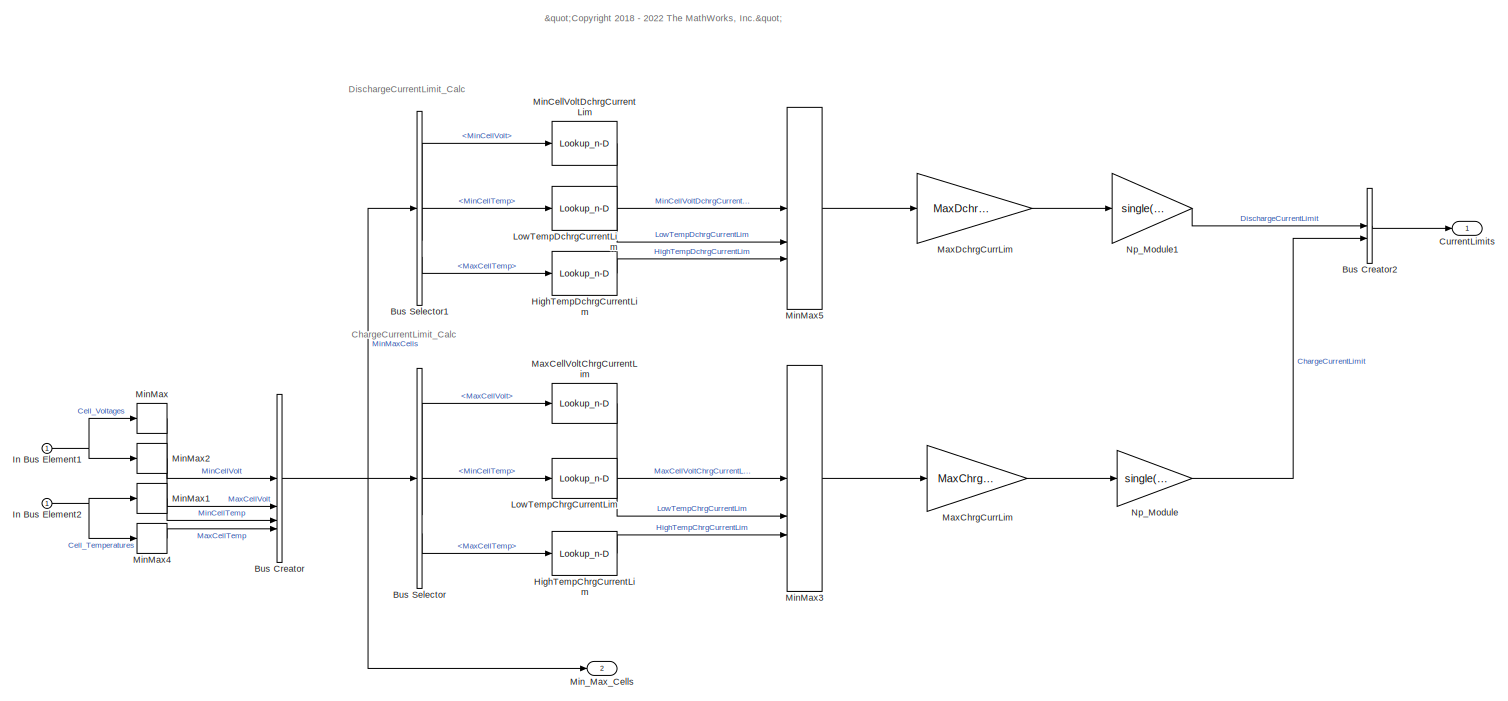
[diagram: root canvas - part 1/2, most of the canvas]
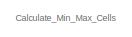
[diagram: root canvas - part 2/2, middle left region]
MODEL slx_5abffa103552
KIND model
BLOCK [BusCreator] Bus Creator
  DisplayOption = bar
  InheritFromInputs = off
  Inputs = 4
  NonVirtualBus = on
  OutDataTypeStr = Bus: Min_Max_Cells
BLOCK [BusCreator] Bus Creator2
  DisplayOption = bar
  InheritFromInputs = on
  Inputs = 2
  NonVirtualBus = on
  OutDataTypeStr = Bus: CurrentLimits
BLOCK [BusSelector] Bus Selector
  OutputSignals = MaxCellVolt,MinCellTemp,MaxCellTemp
BLOCK [BusSelector] Bus Selector1
  OutputSignals = MinCellVolt,MinCellTemp,MaxCellTemp
BLOCK [Outport] CurrentLimits
  OutDataTypeStr = Bus: CurrentLimits
BLOCK [Lookup_n-D] HighTempChrgCurrentLim
  BreakpointsForDimension1 = single([40  45  50    55 65])
  ExtrapMethod = Clip
  InputPortMap = u0
  InternalRulePriority = Speed
  NumberOfTableDimensions = 1
  RndMeth = Simplest
  Table = single([1.0 1.0 0.75 0.5 0])
BLOCK [Lookup_n-D] HighTempDchrgCurrentLim
  BreakpointsForDimension1 = single([40, 45, 50, 60])
  ExtrapMethod = Clip
  InputPortMap = u0
  InternalRulePriority = Speed
  NumberOfTableDimensions = 1
  RndMeth = Simplest
  Table = single([1, 0.5, 0.3, 0])
BLOCK [Inport] In Bus Element1
BLOCK [Inport] In Bus Element2
BLOCK [Lookup_n-D] LowTempChrgCurrentLim
  BreakpointsForDimension1 = single([-15 -10 -5.0 0.0 5.0 10 15.0])
  ExtrapMethod = Clip
  InputPortMap = u0
  InternalRulePriority = Speed
  NumberOfTableDimensions = 1
  RndMeth = Simplest
  Table = single([0.1 0.2  0.3 0.3 0.5 1.0 1.0])
BLOCK [Lookup_n-D] LowTempDchrgCurrentLim
  BreakpointsForDimension1 = single([-10, -5,    0,   5, 10, 15, 20])
  ExtrapMethod = Clip
  InputPortMap = u0
  InternalRulePriority = Speed
  NumberOfTableDimensions = 1
  RndMeth = Simplest
  Table = single([0,  0.2, 0.3, 0.5, 0.75, 1, 1])
BLOCK [Lookup_n-D] MaxCellVoltChrgCurrentLim
  BreakpointsForDimension1 = single([4.0 4.10 4.15 4.2])
  ExtrapMethod = Clip
  InputPortMap = u0
  InternalRulePriority = Speed
  NumberOfTableDimensions = 1
  RndMeth = Simplest
  Table = single([1.0 0.75 0.50 0.2])
BLOCK [Gain] MaxChrgCurrLim
  Gain = MaxChrgCurrLimit
BLOCK [Gain] MaxDchrgCurrLim
  Gain = MaxDchrgCurrLimit
BLOCK [Lookup_n-D] MinCellVoltDchrgCurrentLim
  BreakpointsForDimension1 = MinCellVoltDchrgCurrentLim_BP
  DataSpecification = Lookup table object
  ExtrapMethod = Clip
  InputPortMap = u0
  InternalRulePriority = Speed
  LookupTableObject = MinCellVoltDchrgCurrentLimTable
  NumberOfTableDimensions = 1
  RndMeth = Simplest
  Table = MinCellVoltDchrgCurrentLim_Table
BLOCK [MinMax] MinMax
BLOCK [MinMax] MinMax1
BLOCK [MinMax] MinMax2
  Function = max
BLOCK [MinMax] MinMax3
  Inputs = 3
BLOCK [MinMax] MinMax4
  Function = max
BLOCK [MinMax] MinMax5
  Inputs = 3
BLOCK [Outport] Min_Max_Cells
  OutDataTypeStr = Bus: Min_Max_Cells
  Port = 2
BLOCK [Gain] Np_Module
  Gain = single(Np_Module)
  ParamDataTypeStr = Inherit: Inherit from 'Gain'
BLOCK [Gain] Np_Module1
  Gain = single(Np_Module)
  ParamDataTypeStr = Inherit: Inherit from 'Gain'
ANNOTATION (root): "<copyright redacted>
ANNOTATION (root): Calculate_Min_Max_Cells
ANNOTATION (root): ChargeCurrentLimit_Calc
ANNOTATION (root): DischargeCurrentLimit_Calc
LINE Bus Creator2:1 -> CurrentLimits:1
NET Bus Creator:1 -> Bus Selector1:1, Bus Selector:1, Min_Max_Cells:1
LINE Bus Selector1:1 -> MinCellVoltDchrgCurrentLim:1
LINE Bus Selector1:2 -> LowTempDchrgCurrentLim:1
LINE Bus Selector1:3 -> HighTempDchrgCurrentLim:1
LINE Bus Selector:1 -> MaxCellVoltChrgCurrentLim:1
LINE Bus Selector:2 -> LowTempChrgCurrentLim:1
LINE Bus Selector:3 -> HighTempChrgCurrentLim:1
LINE HighTempChrgCurrentLim:1 -> MinMax3:3
LINE HighTempDchrgCurrentLim:1 -> MinMax5:3
NET In Bus Element1:1 -> MinMax2:1, MinMax:1
NET In Bus Element2:1 -> MinMax1:1, MinMax4:1
LINE LowTempChrgCurrentLim:1 -> MinMax3:2
LINE LowTempDchrgCurrentLim:1 -> MinMax5:2
LINE MaxCellVoltChrgCurrentLim:1 -> MinMax3:1
LINE MaxChrgCurrLim:1 -> Np_Module:1
LINE MaxDchrgCurrLim:1 -> Np_Module1:1
LINE MinCellVoltDchrgCurrentLim:1 -> MinMax5:1
LINE MinMax1:1 -> Bus Creator:3
LINE MinMax2:1 -> Bus Creator:2
LINE MinMax3:1 -> MaxChrgCurrLim:1
LINE MinMax4:1 -> Bus Creator:4
LINE MinMax5:1 -> MaxDchrgCurrLim:1
LINE MinMax:1 -> Bus Creator:1
LINE Np_Module1:1 -> Bus Creator2:1
LINE Np_Module:1 -> Bus Creator2:2
note: NET lines group one-source signal fan-out (src -> all destinations, sorted); 1:1 wires keep LINE
